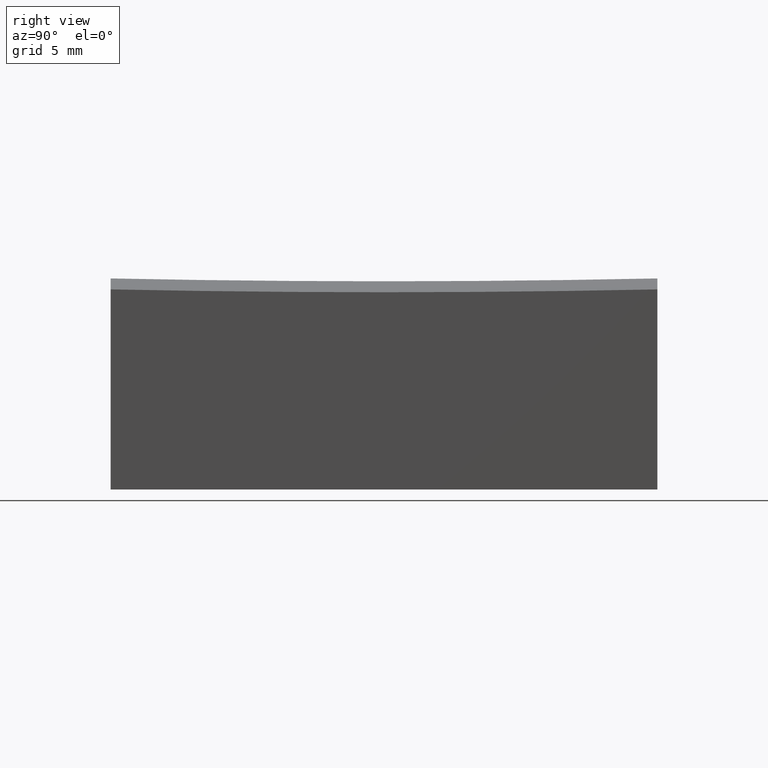
[diagram: clean part render]
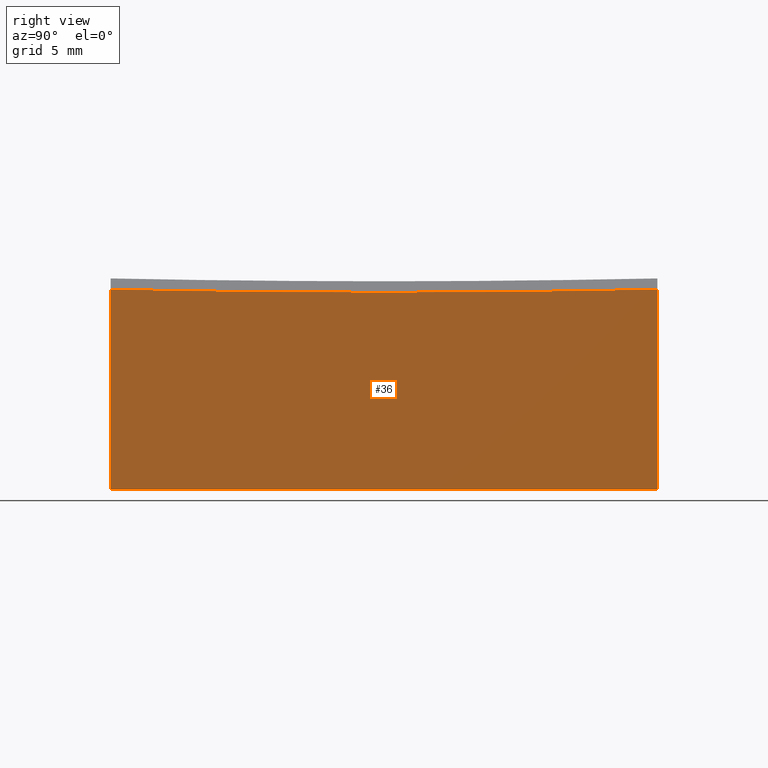
[diagram: same view with one face highlighted and labeled with its STEP entity id]
A machine part, right view. The second image highlights one B-rep face of the part: STEP entity #36.
In plain terms, the highlighted planar face has unit normal (-1, 0, 0).
Its self-contained STEP definition (entity closure, byte-faithful):
#2 = DIRECTION ( 'NONE',  ( -1.000000000000000000, 0.000000000000000000, 0.000000000000000000 ) ) ;
#7 = CARTESIAN_POINT ( 'NONE',  ( 10.00000000000000178, 0.000000000000000000, 599.0000000000000000 ) ) ;
#16 = ORIENTED_EDGE ( 'NONE', *, *, #68, .T. ) ;
#18 = ORIENTED_EDGE ( 'NONE', *, *, #19, .F. ) ;
#19 = EDGE_CURVE ( 'NONE', #195, #60, #38, .T. ) ;
#20 = PLANE ( 'NONE',  #55 ) ;
#36 = ADVANCED_FACE ( 'NONE', ( #131 ), #20, .F. ) ;
#38 = LINE ( 'NONE', #125, #179 ) ;
#46 = DIRECTION ( 'NONE',  ( 0.000000000000000000, 0.000000000000000000, 1.000000000000000000 ) ) ;
#47 = CARTESIAN_POINT ( 'NONE',  ( 10.00000000000000178, -12.50000000000000000, 10.00000000000000000 ) ) ;
#49 = DIRECTION ( 'NONE',  ( -0.000000000000000000, -0.000000000000000000, -1.000000000000000000 ) ) ;
#55 = AXIS2_PLACEMENT_3D ( 'NONE', #47, #2, #95 ) ;
#60 = VERTEX_POINT ( 'NONE', #269 ) ;
#63 = ORIENTED_EDGE ( 'NONE', *, *, #185, .T. ) ;
#68 = EDGE_CURVE ( 'NONE', #212, #240, #223, .T. ) ;
#74 = DIRECTION ( 'NONE',  ( -1.000000000000000000, 0.000000000000000000, 0.000000000000000000 ) ) ;
#77 = CARTESIAN_POINT ( 'NONE',  ( 10.00000000000000178, 0.000000000000000000, 599.0000000000000000 ) ) ;
#90 = EDGE_CURVE ( 'NONE', #195, #255, #92, .T. ) ;
#92 = CIRCLE ( 'NONE', #251, 599.9791663049641102 ) ;
#93 = DIRECTION ( 'NONE',  ( 0.000000000000000000, 1.000000000000000000, 0.000000000000000000 ) ) ;
#95 = DIRECTION ( 'NONE',  ( 0.000000000000000000, 0.000000000000000000, 1.000000000000000000 ) ) ;
#98 = CIRCLE ( 'NONE', #154, 599.9791663049641102 ) ;
#100 = EDGE_CURVE ( 'NONE', #255, #212, #98, .T. ) ;
#107 = DIRECTION ( 'NONE',  ( -0.000000000000000000, -0.000000000000000000, -1.000000000000000000 ) ) ;
#117 = DIRECTION ( 'NONE',  ( 0.000000000000000000, 0.000000000000000000, 1.000000000000000000 ) ) ;
#125 = CARTESIAN_POINT ( 'NONE',  ( 10.00000000000000178, 12.50000000000000000, 10.00000000000000000 ) ) ;
#129 = CARTESIAN_POINT ( 'NONE',  ( 10.00000000000000178, -12.50000000000000000, -0.8489393172249615205 ) ) ;
#131 = FACE_OUTER_BOUND ( 'NONE', #198, .T. ) ;
#154 = AXIS2_PLACEMENT_3D ( 'NONE', #77, #167, #117 ) ;
#158 = CARTESIAN_POINT ( 'NONE',  ( 10.00000000000000178, 12.50000000000000000, -0.8489393172249615205 ) ) ;
#167 = DIRECTION ( 'NONE',  ( -1.000000000000000000, 0.000000000000000000, 0.000000000000000000 ) ) ;
#169 = CARTESIAN_POINT ( 'NONE',  ( 10.00000000000000178, -12.50000000000000000, -10.00000000000000000 ) ) ;
#175 = ORIENTED_EDGE ( 'NONE', *, *, #90, .T. ) ;
#179 = VECTOR ( 'NONE', #107, 1000.000000000000000 ) ;
#185 = EDGE_CURVE ( 'NONE', #240, #60, #207, .T. ) ;
#195 = VERTEX_POINT ( 'NONE', #158 ) ;
#198 = EDGE_LOOP ( 'NONE', ( #18, #175, #258, #16, #63 ) ) ;
#206 = CARTESIAN_POINT ( 'NONE',  ( 10.00000000000000178, -12.50000000000000000, -10.00000000000000000 ) ) ;
#207 = LINE ( 'NONE', #206, #231 ) ;
#212 = VERTEX_POINT ( 'NONE', #129 ) ;
#223 = LINE ( 'NONE', #265, #259 ) ;
#231 = VECTOR ( 'NONE', #93, 1000.000000000000000 ) ;
#237 = CARTESIAN_POINT ( 'NONE',  ( 10.00000000000000178, 0.000000000000000000, -0.9791663049642518324 ) ) ;
#240 = VERTEX_POINT ( 'NONE', #169 ) ;
#251 = AXIS2_PLACEMENT_3D ( 'NONE', #7, #74, #46 ) ;
#255 = VERTEX_POINT ( 'NONE', #237 ) ;
#258 = ORIENTED_EDGE ( 'NONE', *, *, #100, .T. ) ;
#259 = VECTOR ( 'NONE', #49, 1000.000000000000000 ) ;
#265 = CARTESIAN_POINT ( 'NONE',  ( 10.00000000000000178, -12.50000000000000000, 10.00000000000000000 ) ) ;
#269 = CARTESIAN_POINT ( 'NONE',  ( 10.00000000000000178, 12.50000000000000000, -10.00000000000000000 ) ) ;